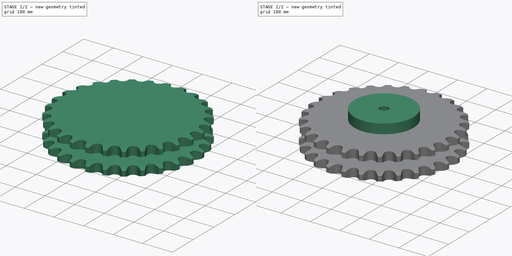
[diagram: build sequence overview — one tinted view per stage of 2, left to right]
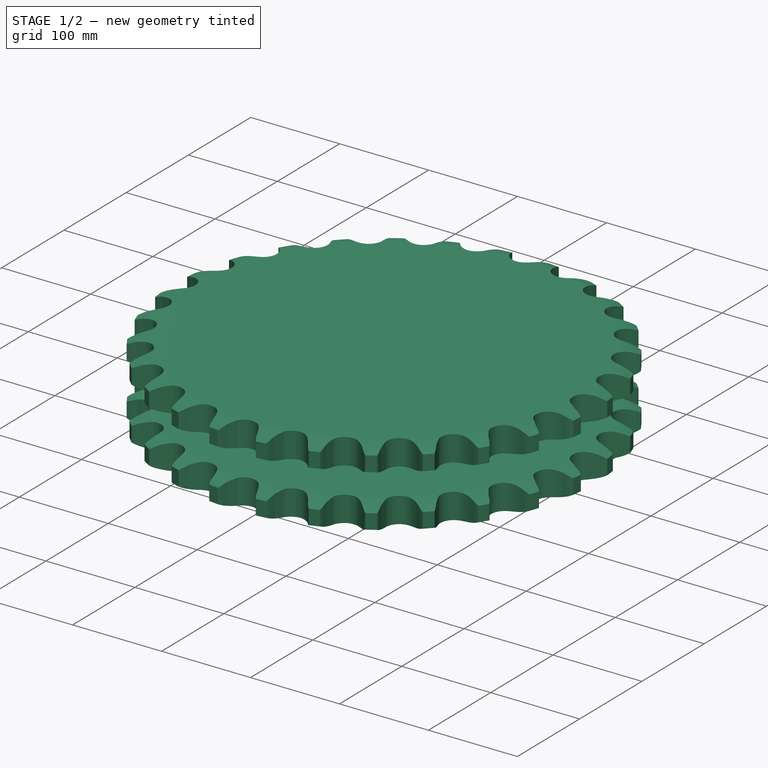
[diagram: stage 1 of 2 — iso view after this stage's code; geometry added in this stage tinted green]
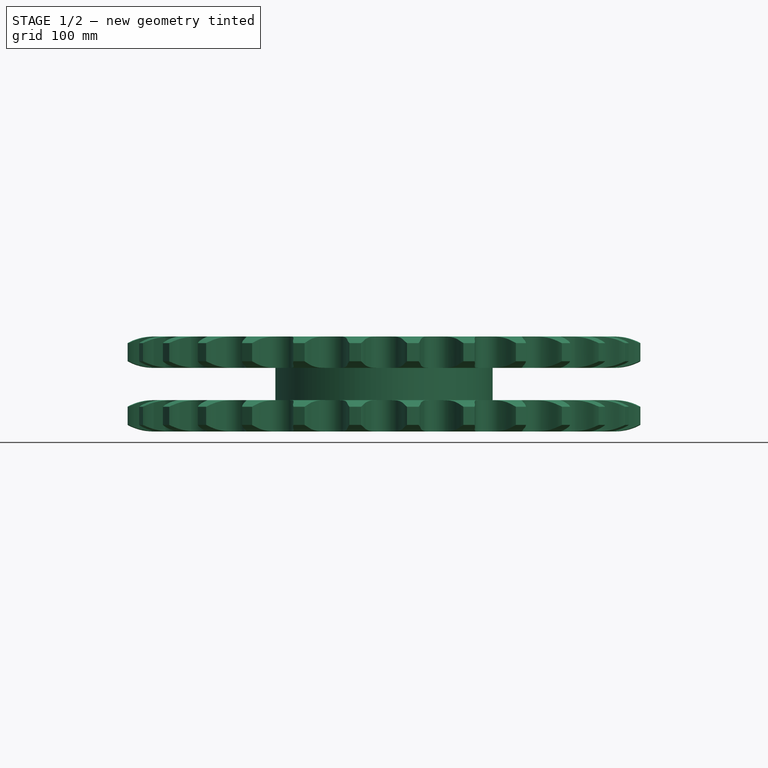
[diagram: stage 1 of 2 — front view after this stage's code; geometry added in this stage tinted green]
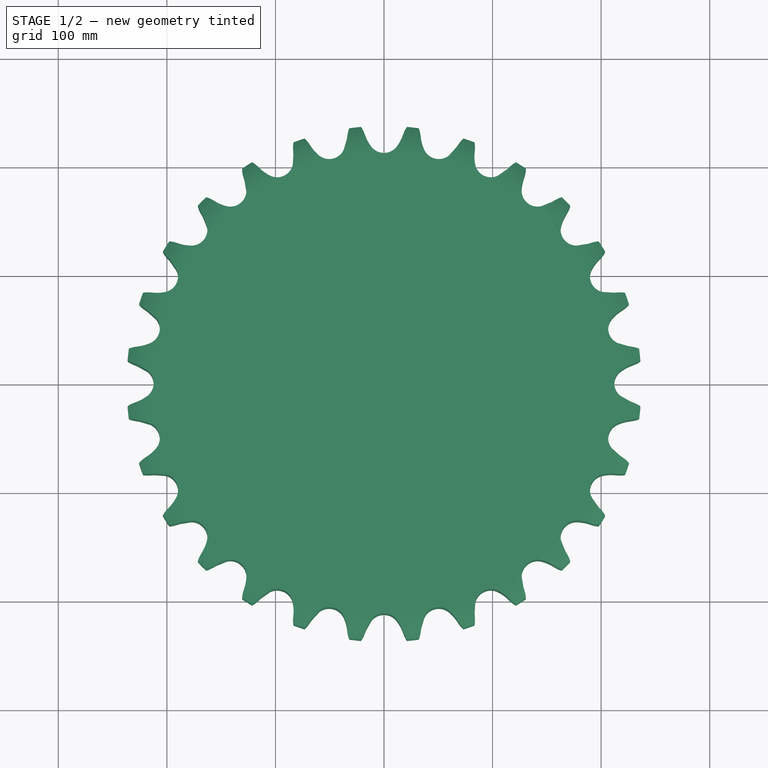
[diagram: stage 1 of 2 — top view after this stage's code; geometry added in this stage tinted green]
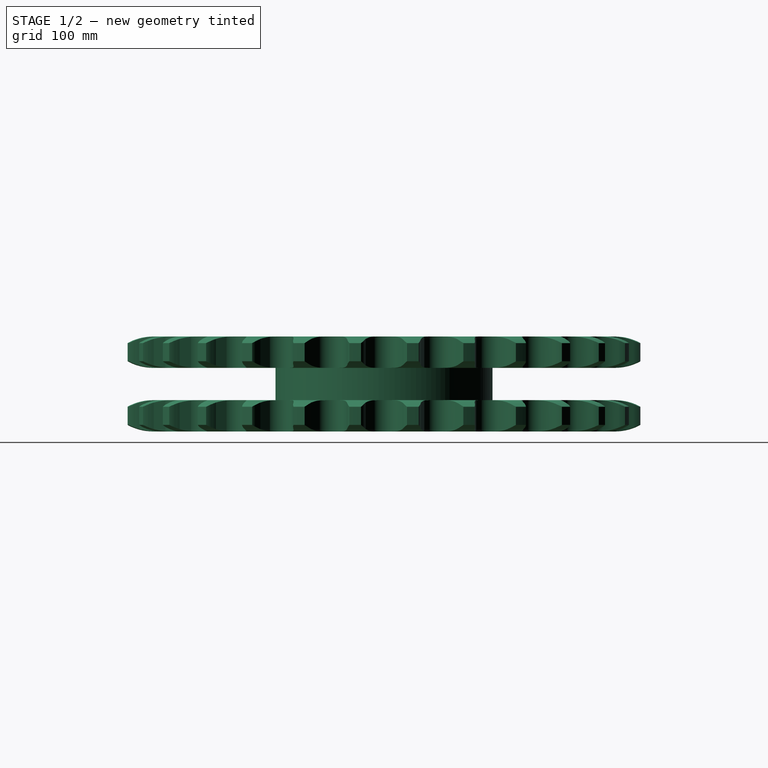
[diagram: stage 1 of 2 — right view after this stage's code; geometry added in this stage tinted green]
FCSTD DOCUMENT  (FreeCAD 0.19R24291 (Git))
Label: Sprocket ANSI duplex 2x1 ¼ z28
License: All rights reserved
LicenseURL: http://en.wikipedia.org/wiki/All_rights_reserved
objects: Sketcher::SketchObject×3, PartDesign::Pad×2, Spreadsheet::Sheet×1, Part::Part2DObjectPython×1, PartDesign::Groove×1, PartDesign::Pocket×1, PartDesign::Body×1
note: 13 computed .brp shape members not serialized (recipe doc carries the construction recipe); baked Part::Feature solids carry a one-line shape summary decoded from their .brp

FEATURE [Spreadsheet::Sheet] Spreadsheet  label="Data"
  cells = A1=P (Pitch); B1=Wc (Chain width); C1=Dr (Roller diameter); D1=Tr (Tooth radius); E1=Rw (Radius width); F1=Wt1 (Tooth width 1); G1=Wt2 (Tooth width 2); H1=z (Number of teeth); I1=De (External Diameter); J1=Dp (pitch diameter); K1=d (Hub diameter); L1=D (Hole diameter); M1=H (Total height); A2(P)==50.8mm; B2(Wc)==30.99mm; C2(Dr)==29.21mm; D2(Tr)==51mm; E2(Rw)==6mm; F2(Wt1)==28.8mm; G2(Wt2)==87.40000000000001mm; H2(z)=28; I2(De)==474.2mm; J2(Dp)==453.69mm; K2(d)==200mm; L2(D)==30mm; M2(H)==120mm
FEATURE [Part::Part2DObjectPython] Sprocket  label="Teeth sketch"  # Draft 2D object (typed FeaturePython)
  ANSISize = 160
  NumberOfTeeth = 28
  Pitch = 50.8
  RollerDiameter = 29.21
  expr: NumberOfTeeth = <<Data>>.z
  expr: Pitch = <<Data>>.P
  expr: RollerDiameter = <<Data>>.Dr
FEATURE [PartDesign::Pad] Pad  label="Teeth"
  Direction = (1,1,1)
  Length = 87.4
  Length2 = 100
  Profile = -> Sprocket
  Type = 0
  expr: Length = <<Data>>.Wt2
FEATURE [Sketcher::SketchObject] Sketch  label="Radius"
  FullyConstrained = true
  MapMode = 5
  Placement = pos=(0,0,0) rot=(1,0,0;1.5708rad)
  Support = -> [XZ_Plane]
  expr: .Constraints.Rw = <<Data>>.Rw
  expr: .Constraints.Wt1 = <<Data>>.Wt1
  expr: .Constraints.Re = <<Data>>.De / 2
  expr: .Constraints.Wt2 = <<Data>>.Wt2
  expr: .Constraints.Tr = <<Data>>.Tr
  expr: .Constraints.r = <<Data>>.d / 2
  sketch-geometry (16):
    g0: ArcOfCircle CenterX=213.1 CenterY=51 CenterZ=0 NormalX=0 NormalY=0 NormalZ=1 AngleXU=0 Radius=51 StartAngle=4.71239 EndAngle=5.20235
    g1: LineSegment StartX=213.1 StartY=0 StartZ=0 EndX=247.1 EndY=0 EndZ=0
    g2: LineSegment StartX=247.1 StartY=87.4 StartZ=0 EndX=247.1 EndY=0 EndZ=0
    g3: ArcOfCircle CenterX=213.1 CenterY=-22.2 CenterZ=0 NormalX=0 NormalY=0 NormalZ=1 AngleXU=0 Radius=51 StartAngle=1.08084 EndAngle=1.5708
    g4: LineSegment StartX=237.1 StartY=6 StartZ=0 EndX=237.1 EndY=22.8 EndZ=0
    g5: LineSegment StartX=213.1 StartY=28.8 StartZ=0 EndX=213.1 EndY=0 EndZ=0
    g6: LineSegment StartX=213.1 StartY=28.8 StartZ=0 EndX=213.1 EndY=58.6 EndZ=0
    g7: ArcOfCircle CenterX=213.1 CenterY=109.6 CenterZ=0 NormalX=0 NormalY=0 NormalZ=1 AngleXU=0 Radius=51 StartAngle=4.71239 EndAngle=5.20235
    g8: LineSegment StartX=237.1 StartY=64.6 StartZ=0 EndX=237.1 EndY=22.8 EndZ=0
    g9: LineSegment StartX=237.1 StartY=64.6 StartZ=0 EndX=237.1 EndY=81.4 EndZ=0
    g10: LineSegment StartX=213.1 StartY=58.6 StartZ=0 EndX=213.1 EndY=87.4 EndZ=0
    g11: LineSegment StartX=213.1 StartY=87.4 StartZ=0 EndX=247.1 EndY=87.4 EndZ=0
    g12: ArcOfCircle CenterX=213.1 CenterY=36.4 CenterZ=0 NormalX=0 NormalY=0 NormalZ=1 AngleXU=0 Radius=51 StartAngle=1.08084 EndAngle=1.5708
    g13: LineSegment StartX=213.1 StartY=58.6 StartZ=0 EndX=100 EndY=58.6 EndZ=0
    g14: LineSegment StartX=100 StartY=58.6 StartZ=0 EndX=100 EndY=28.8 EndZ=0
    g15: LineSegment StartX=100 StartY=28.8 StartZ=0 EndX=213.1 EndY=28.8 EndZ=0
  constraints (47):
    c: PointOnObject(g0,g-1)
    c: Radius(g0) = 51  'Tr'
    c: DistanceY(g0,g0) = 6  'Rw'
    c: Coincident(g1,g0)
    c: PointOnObject(g1,g-1)
    c: Coincident(g2,g1)
    c: Vertical(g2)
    c: DistanceX(g0) = 237.1  'Re'
    c: Coincident(g4,g0)
    c: Vertical(g4)
    c: Coincident(g4,g3)
    c: Equal(g3,g0)
    c: Coincident(g5,g3)
    c: Coincident(g5,g0)
    c: Vertical(g5)
    c: Coincident(g6,g3)
    c: Vertical(g6)
    c: Coincident(g7,g6)
    c: Equal(g0,g7)
    c: Perpendicular(g7,g6)
    c: Coincident(g8,g7)
    c: Coincident(g8,g3)
    c: Vertical(g8)
    c: Coincident(g9,g7)
    c: Coincident(g10,g6)
    c: Vertical(g10)
    c: Vertical(g9)
    c: Coincident(g11,g10)
    c: Coincident(g11,g2)
    c: Horizontal(g11)
    c: DistanceY(g5,g5) = 28.8  'Wt1'
    c: Equal(g5,g10)
    c: DistanceY(g2,g2) = 87.4  'Wt2'
    c: Coincident(g12,g9)
    c: Tangent(g12,g11) = 1.5708
    c: Equal(g0,g12)
    c: Perpendicular(g3,g5)
    c: Equal(g9,g4)
    c: Horizontal(g13)
    c: Coincident(g13,g14)
    c: Vertical(g14)
    c: Coincident(g14,g15)
    c: Horizontal(g15)
    c: Coincident(g13,g7)
    c: Coincident(g15,g3)
    c: DistanceX(g13) = 100  'r'
    c: DistanceX(g9,g2) = 10
FEATURE [PartDesign::Groove] Groove  label="Teeth Radius"
  Angle = 360
  Axis = (-3e-16,3e-16,1)
  Base = (0,0,0)
  BaseFeature = -> Pad
  Profile = -> Sketch
  ReferenceAxis = -> Z_Axis
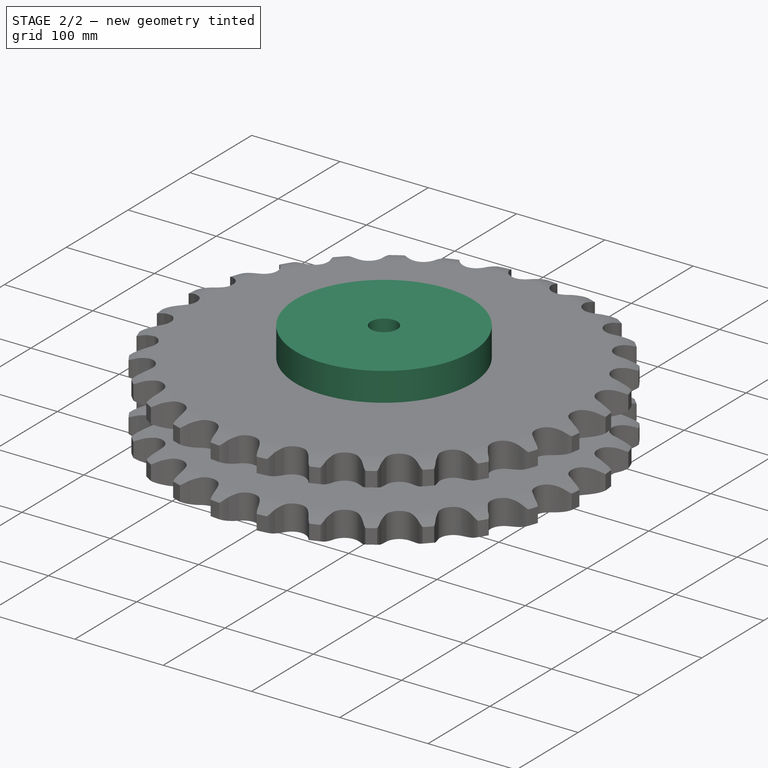
[diagram: stage 2 of 2 — iso view after this stage's code; geometry added in this stage tinted green]
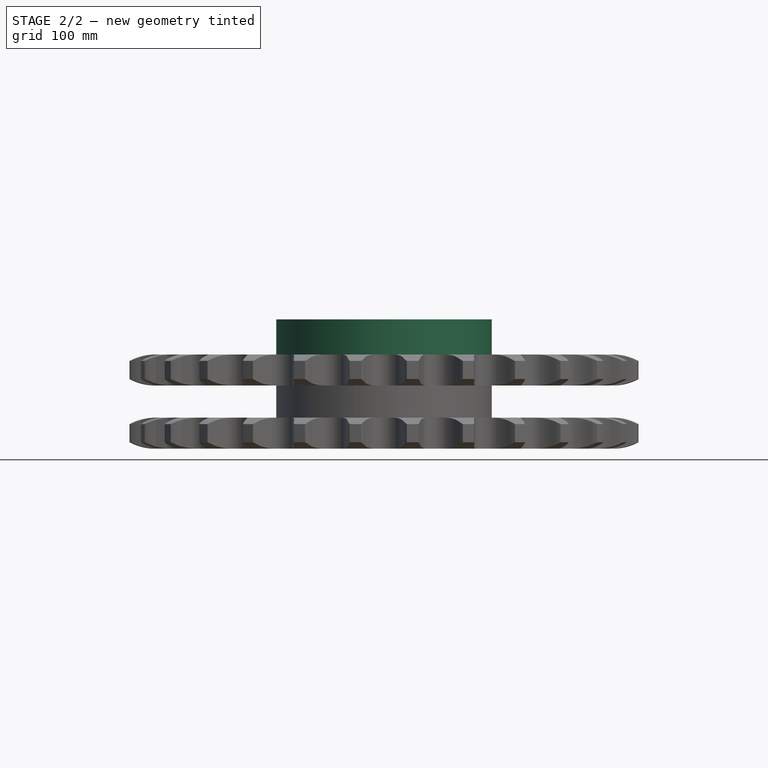
[diagram: stage 2 of 2 — front view after this stage's code; geometry added in this stage tinted green]
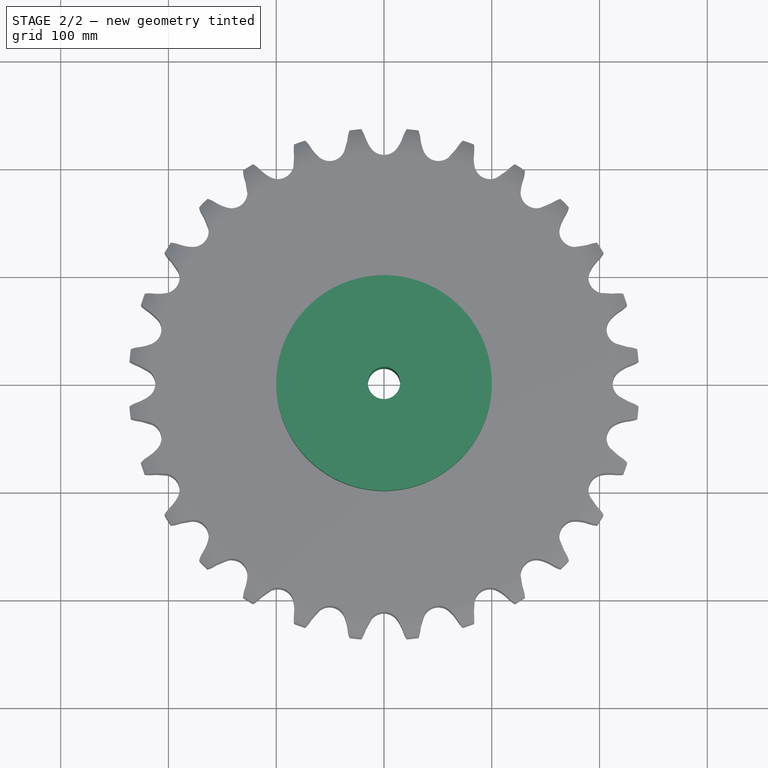
[diagram: stage 2 of 2 — top view after this stage's code; geometry added in this stage tinted green]
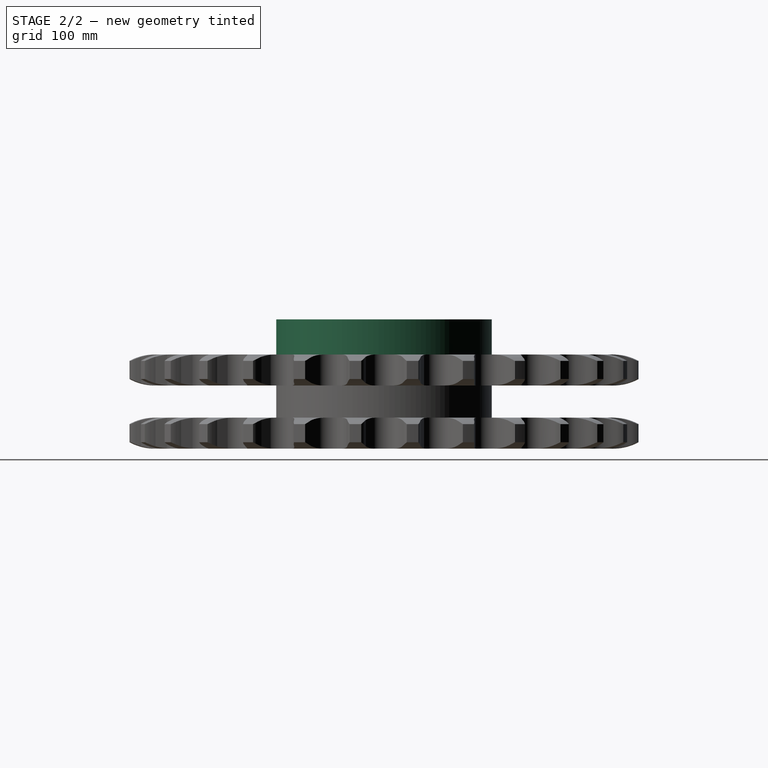
[diagram: stage 2 of 2 — right view after this stage's code; geometry added in this stage tinted green]
FEATURE [Sketcher::SketchObject] Sketch001  label="Hub sketch"
  FullyConstrained = true
  MapMode = 5
  Support = -> [XY_Plane]
  expr: .Constraints.r = <<Data>>.d
  sketch-geometry (1):
    g0: Circle CenterX=0 CenterY=0 CenterZ=0 NormalX=0 NormalY=0 NormalZ=1 AngleXU=0 Radius=100
  constraints (2):
    c: Coincident(g0,g-1)
    c: Diameter(g0) = 200  'r'
FEATURE [PartDesign::Pad] Pad001  label="Hub"
  BaseFeature = -> Groove
  Direction = (1,1,1)
  Length = 120
  Length2 = 100
  Profile = -> Sketch001
  Type = 0
  expr: Length = <<Data>>.H
FEATURE [Sketcher::SketchObject] Sketch002  label="Hole sketch"
  FullyConstrained = true
  MapMode = 5
  Support = -> [XY_Plane]
  expr: .Constraints.R = <<Data>>.D
  sketch-geometry (1):
    g0: Circle CenterX=0 CenterY=0 CenterZ=0 NormalX=0 NormalY=0 NormalZ=1 AngleXU=0 Radius=15
  constraints (2):
    c: Coincident(g0,g-1)
    c: Diameter(g0) = 30  'R'
FEATURE [PartDesign::Pocket] Pocket  label="Hole"
  BaseFeature = -> Pad001
  Length = 5
  Length2 = 100
  Midplane = true
  Profile = -> Sketch002
  Type = 1
FEATURE [PartDesign::Body] Body  label="Sprocket ANSI duplex 2x1 ¼ z28"
  Group = -> [Sprocket,Pad,Sketch,Groove,Sketch001,Pad001,Sketch002,Pocket]
  Origin = -> Origin
  Tip = -> Pocket
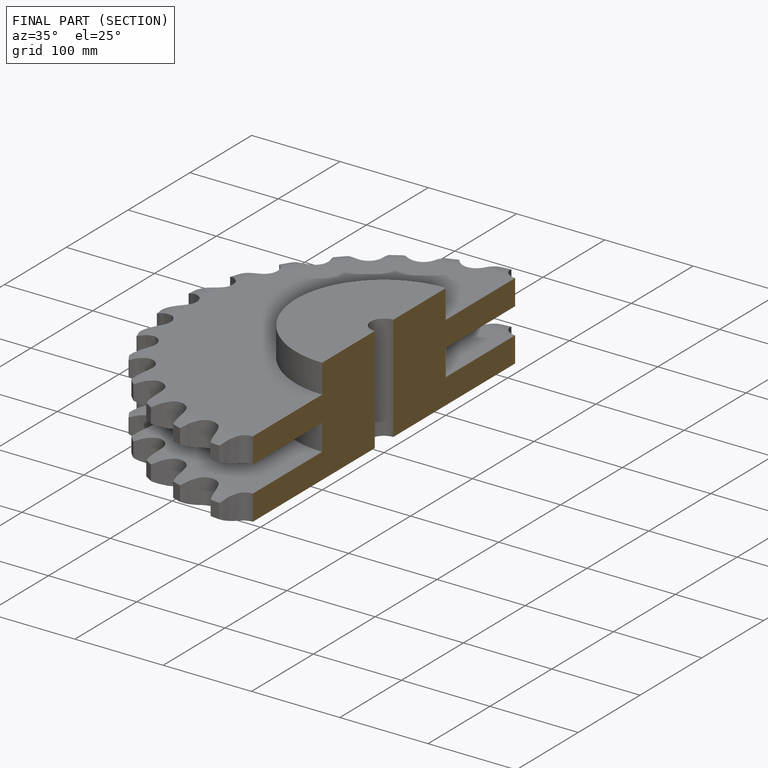
[diagram: finished part — half-section view (interior)]
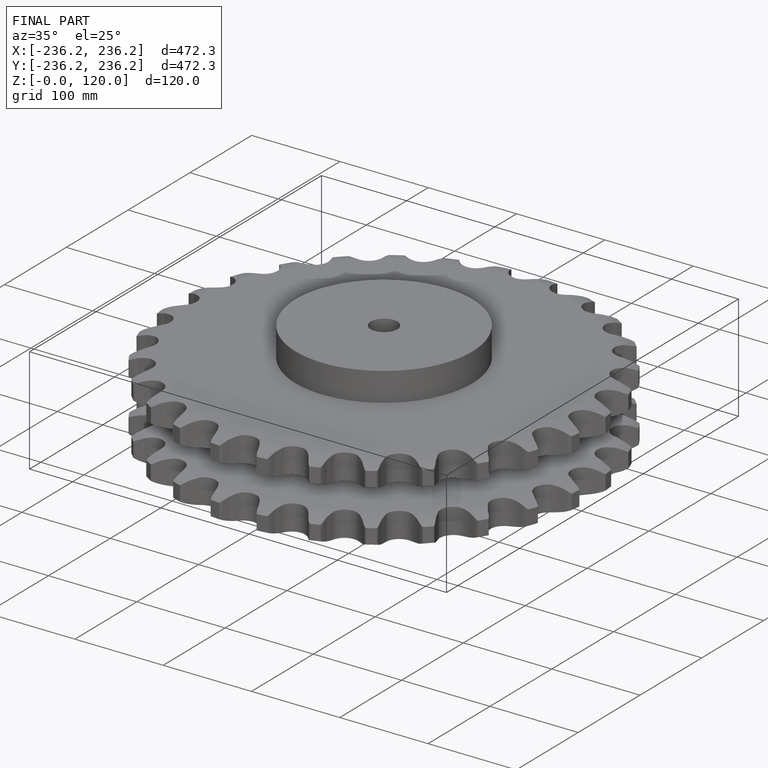
[diagram: finished part — iso view with bounding-box wireframe]
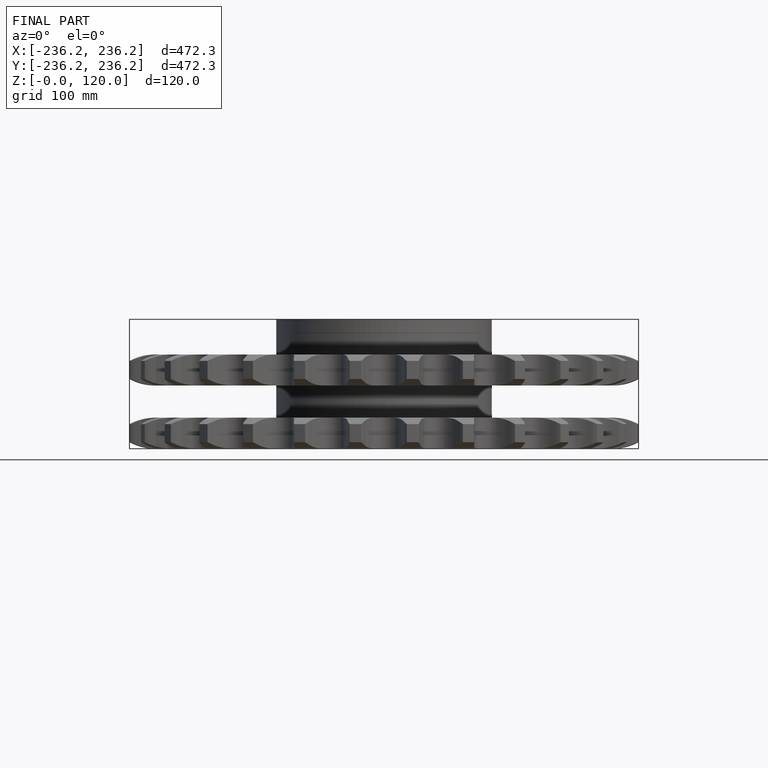
[diagram: finished part — front view with bounding-box wireframe]
